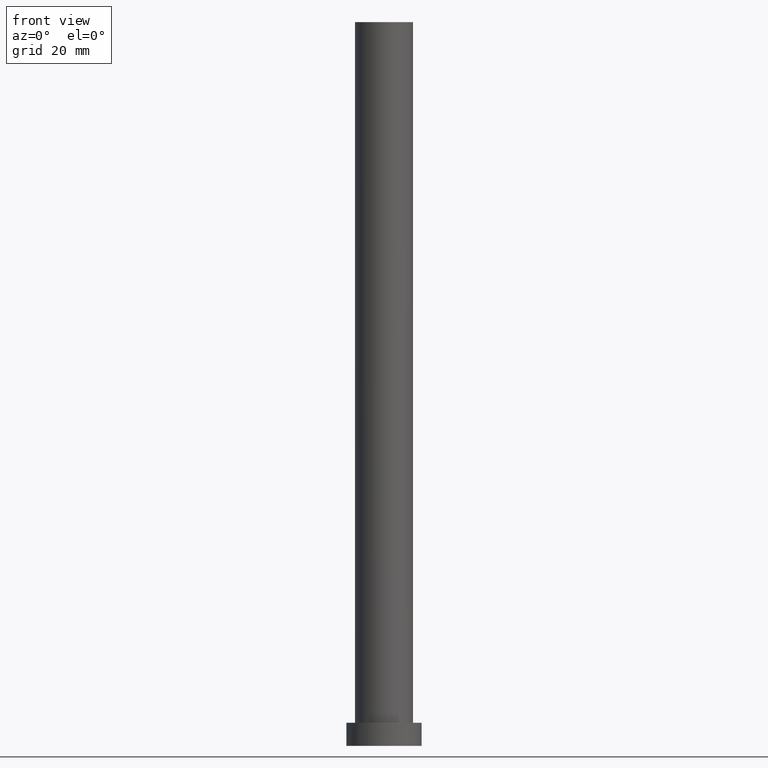
[diagram: clean part render]
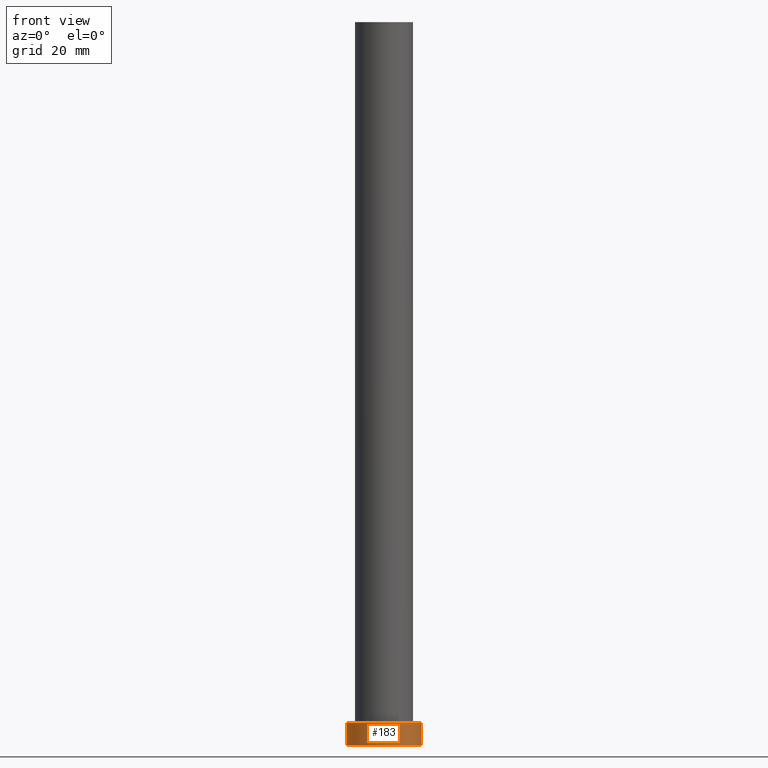
[diagram: same view with one face highlighted and labeled with its STEP entity id]
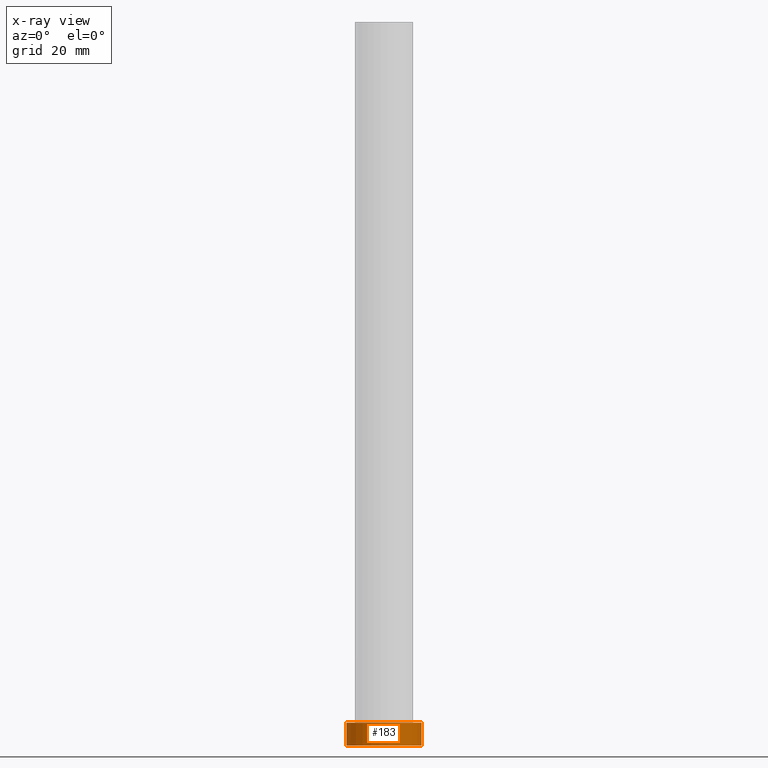
[diagram: x-ray of the same camera — body ghosted, the highlighted face saturated]
A machine part, front view. The second image highlights one B-rep face of the part: STEP entity #183.
The next image is the same camera in x-ray: the body ghosted, the highlighted face saturated — about 0% of this face is hidden behind the body in this view.
In plain terms, the highlighted cylindrical surface (partial cylindrical patch) has radius 13 mm, axis along (-0, -0, -1).
Its self-contained STEP definition (entity closure, byte-faithful):
#1 = VERTEX_POINT ( 'NONE', #127 ) ;
#5 = VERTEX_POINT ( 'NONE', #148 ) ;
#7 = DIRECTION ( 'NONE',  ( -0.000000000000000000, -0.000000000000000000, -1.000000000000000000 ) ) ;
#23 = FACE_OUTER_BOUND ( 'NONE', #57, .T. ) ;
#25 = VECTOR ( 'NONE', #206, 1000.000000000000000 ) ;
#28 = LINE ( 'NONE', #120, #25 ) ;
#40 = LINE ( 'NONE', #202, #251 ) ;
#46 = CYLINDRICAL_SURFACE ( 'NONE', #203, 13.00000000000000178 ) ;
#48 = DIRECTION ( 'NONE',  ( -0.000000000000000000, -0.000000000000000000, -1.000000000000000000 ) ) ;
#57 = EDGE_LOOP ( 'NONE', ( #234, #79, #218, #123 ) ) ;
#60 = EDGE_CURVE ( 'NONE', #5, #1, #72, .T. ) ;
#68 = AXIS2_PLACEMENT_3D ( 'NONE', #220, #184, #132 ) ;
#70 = EDGE_CURVE ( 'NONE', #239, #134, #215, .T. ) ;
#72 = CIRCLE ( 'NONE', #68, 13.00000000000000178 ) ;
#79 = ORIENTED_EDGE ( 'NONE', *, *, #60, .F. ) ;
#82 = DIRECTION ( 'NONE',  ( -1.000000000000000000, 0.000000000000000000, 0.000000000000000000 ) ) ;
#101 = EDGE_CURVE ( 'NONE', #5, #239, #40, .T. ) ;
#105 = CARTESIAN_POINT ( 'NONE',  ( 0.000000000000000000, 0.000000000000000000, 8.000000000000000000 ) ) ;
#107 = AXIS2_PLACEMENT_3D ( 'NONE', #170, #243, #154 ) ;
#111 = CARTESIAN_POINT ( 'NONE',  ( 13.00000000000000178, 1.592040838891559293E-15, 0.000000000000000000 ) ) ;
#120 = CARTESIAN_POINT ( 'NONE',  ( 13.00000000000000178, 1.592040838891559293E-15, 8.000000000000000000 ) ) ;
#123 = ORIENTED_EDGE ( 'NONE', *, *, #70, .T. ) ;
#127 = CARTESIAN_POINT ( 'NONE',  ( 13.00000000000000178, 1.592040838891559293E-15, 8.000000000000000000 ) ) ;
#132 = DIRECTION ( 'NONE',  ( 1.000000000000000000, 0.000000000000000000, 0.000000000000000000 ) ) ;
#134 = VERTEX_POINT ( 'NONE', #111 ) ;
#148 = CARTESIAN_POINT ( 'NONE',  ( -13.00000000000000178, 0.000000000000000000, 8.000000000000000000 ) ) ;
#154 = DIRECTION ( 'NONE',  ( 1.000000000000000000, 0.000000000000000000, 0.000000000000000000 ) ) ;
#170 = CARTESIAN_POINT ( 'NONE',  ( 0.000000000000000000, 0.000000000000000000, 0.000000000000000000 ) ) ;
#174 = CARTESIAN_POINT ( 'NONE',  ( -13.00000000000000178, 0.000000000000000000, 0.000000000000000000 ) ) ;
#183 = ADVANCED_FACE ( 'NONE', ( #23 ), #46, .T. ) ;
#184 = DIRECTION ( 'NONE',  ( 0.000000000000000000, 0.000000000000000000, 1.000000000000000000 ) ) ;
#202 = CARTESIAN_POINT ( 'NONE',  ( -13.00000000000000178, 0.000000000000000000, 8.000000000000000000 ) ) ;
#203 = AXIS2_PLACEMENT_3D ( 'NONE', #105, #7, #82 ) ;
#206 = DIRECTION ( 'NONE',  ( -0.000000000000000000, -0.000000000000000000, -1.000000000000000000 ) ) ;
#215 = CIRCLE ( 'NONE', #107, 13.00000000000000178 ) ;
#218 = ORIENTED_EDGE ( 'NONE', *, *, #101, .T. ) ;
#219 = EDGE_CURVE ( 'NONE', #1, #134, #28, .T. ) ;
#220 = CARTESIAN_POINT ( 'NONE',  ( 0.000000000000000000, 0.000000000000000000, 8.000000000000000000 ) ) ;
#234 = ORIENTED_EDGE ( 'NONE', *, *, #219, .F. ) ;
#239 = VERTEX_POINT ( 'NONE', #174 ) ;
#243 = DIRECTION ( 'NONE',  ( 0.000000000000000000, 0.000000000000000000, 1.000000000000000000 ) ) ;
#251 = VECTOR ( 'NONE', #48, 1000.000000000000000 ) ;